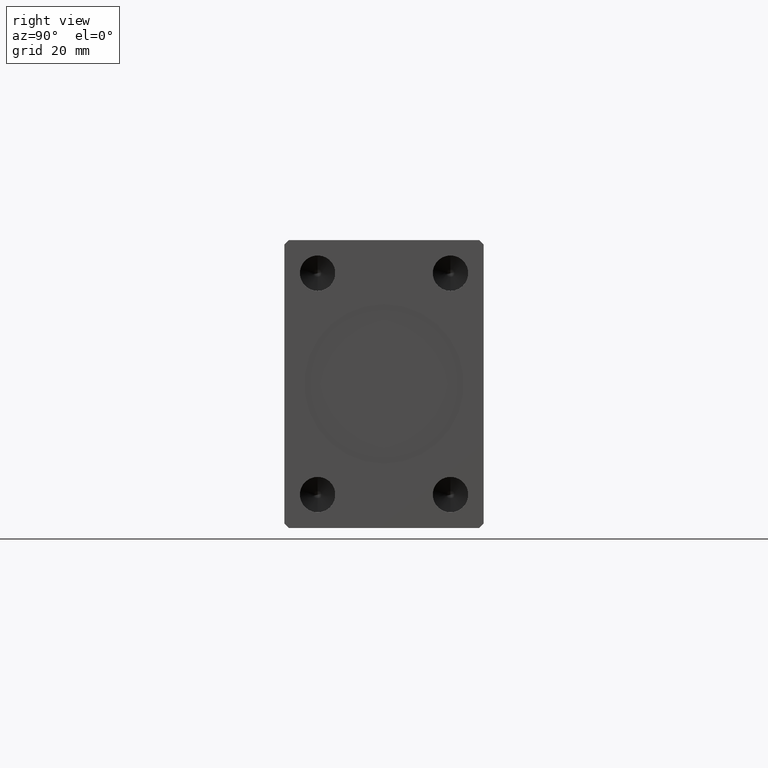
[diagram: clean part render]
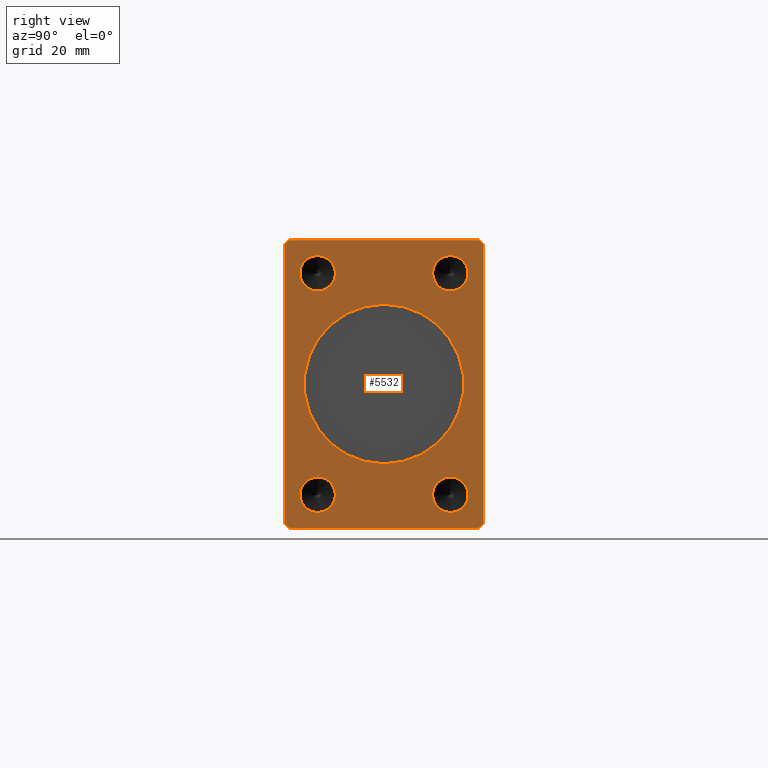
[diagram: same view with one face highlighted and labeled with its STEP entity id]
A machine part, right view. The second image highlights one B-rep face of the part: STEP entity #5532.
In plain terms, the highlighted planar face has unit normal (1, 0, 0).
Its self-contained STEP definition (entity closure, byte-faithful):
#200 = CARTESIAN_POINT ( 'NONE',  ( 138.0000000000000000, -14.99999999999999645, -24.99999999999999645 ) ) ;
#1016 = ORIENTED_EDGE ( 'NONE', *, *, #33784, .F. ) ;
#1176 = CIRCLE ( 'NONE', #10402, 4.000000000000000000 ) ;
#1280 = DIRECTION ( 'NONE',  ( 0.000000000000000000, 0.000000000000000000, -1.000000000000000000 ) ) ;
#1363 = VECTOR ( 'NONE', #7254, 1000.000000000000000 ) ;
#1558 = VERTEX_POINT ( 'NONE', #28728 ) ;
#2115 = ORIENTED_EDGE ( 'NONE', *, *, #31484, .F. ) ;
#2543 = FACE_BOUND ( 'NONE', #7049, .T. ) ;
#2833 = VERTEX_POINT ( 'NONE', #13356 ) ;
#2876 = AXIS2_PLACEMENT_3D ( 'NONE', #3764, #24056, #33662 ) ;
#2991 = AXIS2_PLACEMENT_3D ( 'NONE', #21620, #35234, #4666 ) ;
#3762 = LINE ( 'NONE', #36683, #5003 ) ;
#3764 = CARTESIAN_POINT ( 'NONE',  ( 138.0000000000000000, 15.00000000000000355, 25.00000000000000000 ) ) ;
#4071 = CARTESIAN_POINT ( 'NONE',  ( 138.0000000000000000, -14.99999999999999645, -20.99999999999999645 ) ) ;
#4209 = LINE ( 'NONE', #30535, #35631 ) ;
#4666 = DIRECTION ( 'NONE',  ( 0.000000000000000000, 0.000000000000000000, -1.000000000000000000 ) ) ;
#4786 = VERTEX_POINT ( 'NONE', #39221 ) ;
#4813 = LINE ( 'NONE', #8376, #22784 ) ;
#5003 = VECTOR ( 'NONE', #38760, 1000.000000000000114 ) ;
#5037 = DIRECTION ( 'NONE',  ( 0.000000000000000000, 1.000000000000000000, 1.613696256722610912E-16 ) ) ;
#5532 = ADVANCED_FACE ( 'NONE', ( #33097, #26201, #39796, #2543, #16145, #29760 ), #43367, .T. ) ;
#5717 = AXIS2_PLACEMENT_3D ( 'NONE', #12806, #40230, #23061 ) ;
#5733 = LINE ( 'NONE', #19341, #34863 ) ;
#5896 = CARTESIAN_POINT ( 'NONE',  ( 138.0000000000000000, -21.50000000000001421, 32.50000000000000000 ) ) ;
#6012 = ORIENTED_EDGE ( 'NONE', *, *, #26882, .T. ) ;
#6789 = EDGE_CURVE ( 'NONE', #31135, #37989, #39808, .T. ) ;
#6796 = EDGE_CURVE ( 'NONE', #17600, #40796, #22116, .T. ) ;
#7049 = EDGE_LOOP ( 'NONE', ( #7270, #8246 ) ) ;
#7254 = DIRECTION ( 'NONE',  ( 0.000000000000000000, 5.507058653894625853E-17, -1.000000000000000000 ) ) ;
#7270 = ORIENTED_EDGE ( 'NONE', *, *, #42065, .F. ) ;
#7840 = CARTESIAN_POINT ( 'NONE',  ( 138.0000000000000000, -21.50000000000001421, 32.50000000000000000 ) ) ;
#7913 = LINE ( 'NONE', #34922, #1363 ) ;
#8246 = ORIENTED_EDGE ( 'NONE', *, *, #29807, .F. ) ;
#8331 = EDGE_LOOP ( 'NONE', ( #25508, #30068 ) ) ;
#8376 = CARTESIAN_POINT ( 'NONE',  ( 138.0000000000000000, -21.50000000000001776, -32.50000000000000711 ) ) ;
#8964 = EDGE_CURVE ( 'NONE', #1558, #10633, #5733, .T. ) ;
#9067 = ORIENTED_EDGE ( 'NONE', *, *, #42921, .T. ) ;
#9712 = DIRECTION ( 'NONE',  ( 0.000000000000000000, 0.7071067811865451302, -0.7071067811865500152 ) ) ;
#9750 = EDGE_CURVE ( 'NONE', #10633, #32668, #4209, .T. ) ;
#10308 = DIRECTION ( 'NONE',  ( 1.000000000000000000, -0.000000000000000000, -0.000000000000000000 ) ) ;
#10402 = AXIS2_PLACEMENT_3D ( 'NONE', #18825, #35580, #42471 ) ;
#10427 = ORIENTED_EDGE ( 'NONE', *, *, #9750, .T. ) ;
#10454 = DIRECTION ( 'NONE',  ( 0.000000000000000000, 0.000000000000000000, -1.000000000000000000 ) ) ;
#10484 = CARTESIAN_POINT ( 'NONE',  ( 138.0000000000000000, 15.00000000000000355, 21.00000000000000000 ) ) ;
#10633 = VERTEX_POINT ( 'NONE', #15838 ) ;
#11469 = ORIENTED_EDGE ( 'NONE', *, *, #40822, .T. ) ;
#11563 = DIRECTION ( 'NONE',  ( 1.000000000000000000, -0.000000000000000000, -0.000000000000000000 ) ) ;
#11815 = VERTEX_POINT ( 'NONE', #29621 ) ;
#12130 = CIRCLE ( 'NONE', #24958, 4.000000000000000000 ) ;
#12214 = CARTESIAN_POINT ( 'NONE',  ( 138.0000000000000000, 15.00000000000000355, -28.99999999999999289 ) ) ;
#12472 = EDGE_CURVE ( 'NONE', #11815, #28555, #37891, .T. ) ;
#12806 = CARTESIAN_POINT ( 'NONE',  ( 138.0000000000000000, 0.000000000000000000, 0.000000000000000000 ) ) ;
#13068 = LINE ( 'NONE', #40273, #25692 ) ;
#13125 = CARTESIAN_POINT ( 'NONE',  ( 138.0000000000000000, 0.000000000000000000, 0.000000000000000000 ) ) ;
#13356 = CARTESIAN_POINT ( 'NONE',  ( 138.0000000000000000, -21.50000000000001776, -32.50000000000000711 ) ) ;
#13438 = CARTESIAN_POINT ( 'NONE',  ( 138.0000000000000000, 15.00000000000000355, 29.00000000000000000 ) ) ;
#13668 = DIRECTION ( 'NONE',  ( 0.000000000000000000, 0.000000000000000000, -1.000000000000000000 ) ) ;
#13722 = EDGE_LOOP ( 'NONE', ( #2115, #39688 ) ) ;
#13995 = ORIENTED_EDGE ( 'NONE', *, *, #41296, .F. ) ;
#14219 = VERTEX_POINT ( 'NONE', #12214 ) ;
#14871 = EDGE_CURVE ( 'NONE', #30458, #28729, #29632, .T. ) ;
#15479 = AXIS2_PLACEMENT_3D ( 'NONE', #26172, #36213, #43337 ) ;
#15639 = CARTESIAN_POINT ( 'NONE',  ( 138.0000000000000000, -14.99999999999999645, 24.99999999999999645 ) ) ;
#15653 = AXIS2_PLACEMENT_3D ( 'NONE', #42133, #11563, #25169 ) ;
#15838 = CARTESIAN_POINT ( 'NONE',  ( 138.0000000000000000, 22.49999999999999645, -31.50000000000000000 ) ) ;
#15946 = CARTESIAN_POINT ( 'NONE',  ( 138.0000000000000000, -22.50000000000001776, 31.50000000000000000 ) ) ;
#16145 = FACE_BOUND ( 'NONE', #8331, .T. ) ;
#17537 = AXIS2_PLACEMENT_3D ( 'NONE', #15639, #26345, #29264 ) ;
#17600 = VERTEX_POINT ( 'NONE', #4071 ) ;
#18522 = CIRCLE ( 'NONE', #15653, 4.000000000000000000 ) ;
#18646 = CARTESIAN_POINT ( 'NONE',  ( 138.0000000000000000, -14.99999999999999645, -28.99999999999999645 ) ) ;
#18825 = CARTESIAN_POINT ( 'NONE',  ( 138.0000000000000000, -14.99999999999999645, -24.99999999999999645 ) ) ;
#19107 = EDGE_LOOP ( 'NONE', ( #23154, #1016 ) ) ;
#19111 = DIRECTION ( 'NONE',  ( 0.000000000000000000, 0.7071067811865474617, 0.7071067811865474617 ) ) ;
#19341 = CARTESIAN_POINT ( 'NONE',  ( 138.0000000000000000, 21.49999999999999645, -32.50000000000000000 ) ) ;
#19387 = DIRECTION ( 'NONE',  ( 0.000000000000000000, 0.000000000000000000, -1.000000000000000000 ) ) ;
#19825 = EDGE_CURVE ( 'NONE', #32668, #27137, #3762, .T. ) ;
#20388 = CARTESIAN_POINT ( 'NONE',  ( 138.0000000000000000, 2.204364238465235428E-15, 18.00000000000000000 ) ) ;
#21033 = CARTESIAN_POINT ( 'NONE',  ( 138.0000000000000000, 21.49999999999999645, 32.50000000000000000 ) ) ;
#21579 = CARTESIAN_POINT ( 'NONE',  ( 138.0000000000000000, -14.99999999999999645, 24.99999999999999645 ) ) ;
#21620 = CARTESIAN_POINT ( 'NONE',  ( 138.0000000000000000, 0.000000000000000000, 0.000000000000000000 ) ) ;
#22116 = CIRCLE ( 'NONE', #34230, 4.000000000000000000 ) ;
#22308 = EDGE_CURVE ( 'NONE', #24650, #40945, #30422, .T. ) ;
#22784 = VECTOR ( 'NONE', #5037, 1000.000000000000000 ) ;
#23061 = DIRECTION ( 'NONE',  ( 0.000000000000000000, 0.000000000000000000, -1.000000000000000000 ) ) ;
#23105 = VECTOR ( 'NONE', #33770, 1000.000000000000114 ) ;
#23154 = ORIENTED_EDGE ( 'NONE', *, *, #12472, .F. ) ;
#23294 = AXIS2_PLACEMENT_3D ( 'NONE', #21579, #35196, #1280 ) ;
#23398 = DIRECTION ( 'NONE',  ( 1.000000000000000000, -0.000000000000000000, -0.000000000000000000 ) ) ;
#23718 = ORIENTED_EDGE ( 'NONE', *, *, #8964, .T. ) ;
#24056 = DIRECTION ( 'NONE',  ( 1.000000000000000000, -0.000000000000000000, -0.000000000000000000 ) ) ;
#24195 = EDGE_LOOP ( 'NONE', ( #37161, #6012, #29098, #43413, #9067, #11469, #23718, #10427 ) ) ;
#24650 = VERTEX_POINT ( 'NONE', #7840 ) ;
#24846 = CARTESIAN_POINT ( 'NONE',  ( 138.0000000000000000, -14.99999999999999645, 20.99999999999999645 ) ) ;
#24958 = AXIS2_PLACEMENT_3D ( 'NONE', #41313, #10308, #13668 ) ;
#25169 = DIRECTION ( 'NONE',  ( 0.000000000000000000, 0.000000000000000000, -1.000000000000000000 ) ) ;
#25508 = ORIENTED_EDGE ( 'NONE', *, *, #33215, .F. ) ;
#25692 = VECTOR ( 'NONE', #9712, 1000.000000000000114 ) ;
#26172 = CARTESIAN_POINT ( 'NONE',  ( 138.0000000000000000, 15.00000000000000355, -24.99999999999999289 ) ) ;
#26201 = FACE_BOUND ( 'NONE', #36067, .T. ) ;
#26345 = DIRECTION ( 'NONE',  ( 1.000000000000000000, -0.000000000000000000, -0.000000000000000000 ) ) ;
#26567 = CARTESIAN_POINT ( 'NONE',  ( 138.0000000000000000, 22.49999999999999645, 31.50000000000000000 ) ) ;
#26882 = EDGE_CURVE ( 'NONE', #27137, #24650, #43589, .T. ) ;
#27137 = VERTEX_POINT ( 'NONE', #21033 ) ;
#27579 = CIRCLE ( 'NONE', #28999, 18.00000000000000000 ) ;
#28311 = CIRCLE ( 'NONE', #15479, 4.000000000000000000 ) ;
#28555 = VERTEX_POINT ( 'NONE', #20388 ) ;
#28728 = CARTESIAN_POINT ( 'NONE',  ( 138.0000000000000000, 21.49999999999999645, -32.50000000000000000 ) ) ;
#28729 = VERTEX_POINT ( 'NONE', #24846 ) ;
#28999 = AXIS2_PLACEMENT_3D ( 'NONE', #13125, #33198, #19387 ) ;
#29098 = ORIENTED_EDGE ( 'NONE', *, *, #22308, .T. ) ;
#29264 = DIRECTION ( 'NONE',  ( 0.000000000000000000, 0.000000000000000000, -1.000000000000000000 ) ) ;
#29621 = CARTESIAN_POINT ( 'NONE',  ( 138.0000000000000000, 0.000000000000000000, -18.00000000000000000 ) ) ;
#29632 = CIRCLE ( 'NONE', #17537, 4.000000000000000000 ) ;
#29760 = FACE_OUTER_BOUND ( 'NONE', #24195, .T. ) ;
#29807 = EDGE_CURVE ( 'NONE', #31361, #14219, #28311, .T. ) ;
#30068 = ORIENTED_EDGE ( 'NONE', *, *, #14871, .F. ) ;
#30422 = LINE ( 'NONE', #5896, #23105 ) ;
#30458 = VERTEX_POINT ( 'NONE', #41597 ) ;
#30535 = CARTESIAN_POINT ( 'NONE',  ( 138.0000000000000000, 22.49999999999999645, -31.50000000000000000 ) ) ;
#31077 = VECTOR ( 'NONE', #40011, 1000.000000000000000 ) ;
#31135 = VERTEX_POINT ( 'NONE', #10484 ) ;
#31361 = VERTEX_POINT ( 'NONE', #39664 ) ;
#31419 = DIRECTION ( 'NONE',  ( 0.000000000000000000, 0.000000000000000000, 1.000000000000000000 ) ) ;
#31484 = EDGE_CURVE ( 'NONE', #40796, #17600, #1176, .T. ) ;
#31865 = CIRCLE ( 'NONE', #23294, 4.000000000000000000 ) ;
#32668 = VERTEX_POINT ( 'NONE', #26567 ) ;
#33092 = CARTESIAN_POINT ( 'NONE',  ( 138.0000000000000000, 21.49999999999999645, 32.50000000000000000 ) ) ;
#33097 = FACE_BOUND ( 'NONE', #19107, .T. ) ;
#33198 = DIRECTION ( 'NONE',  ( 1.000000000000000000, 0.000000000000000000, 0.000000000000000000 ) ) ;
#33215 = EDGE_CURVE ( 'NONE', #28729, #30458, #31865, .T. ) ;
#33662 = DIRECTION ( 'NONE',  ( 0.000000000000000000, 0.000000000000000000, -1.000000000000000000 ) ) ;
#33770 = DIRECTION ( 'NONE',  ( 0.000000000000000000, -0.7071067811865474617, -0.7071067811865474617 ) ) ;
#33784 = EDGE_CURVE ( 'NONE', #28555, #11815, #27579, .T. ) ;
#34230 = AXIS2_PLACEMENT_3D ( 'NONE', #200, #23398, #10454 ) ;
#34581 = ORIENTED_EDGE ( 'NONE', *, *, #6789, .F. ) ;
#34863 = VECTOR ( 'NONE', #19111, 1000.000000000000114 ) ;
#34922 = CARTESIAN_POINT ( 'NONE',  ( 138.0000000000000000, -22.50000000000001776, 31.50000000000000000 ) ) ;
#35196 = DIRECTION ( 'NONE',  ( 1.000000000000000000, -0.000000000000000000, -0.000000000000000000 ) ) ;
#35234 = DIRECTION ( 'NONE',  ( 1.000000000000000000, 0.000000000000000000, 0.000000000000000000 ) ) ;
#35580 = DIRECTION ( 'NONE',  ( 1.000000000000000000, -0.000000000000000000, -0.000000000000000000 ) ) ;
#35631 = VECTOR ( 'NONE', #31419, 1000.000000000000000 ) ;
#36067 = EDGE_LOOP ( 'NONE', ( #34581, #13995 ) ) ;
#36213 = DIRECTION ( 'NONE',  ( 1.000000000000000000, -0.000000000000000000, -0.000000000000000000 ) ) ;
#36683 = CARTESIAN_POINT ( 'NONE',  ( 138.0000000000000000, 22.49999999999999645, 31.50000000000000000 ) ) ;
#37161 = ORIENTED_EDGE ( 'NONE', *, *, #19825, .T. ) ;
#37891 = CIRCLE ( 'NONE', #2991, 18.00000000000000000 ) ;
#37989 = VERTEX_POINT ( 'NONE', #13438 ) ;
#38613 = EDGE_CURVE ( 'NONE', #40945, #4786, #7913, .T. ) ;
#38760 = DIRECTION ( 'NONE',  ( 0.000000000000000000, -0.7071067811865474617, 0.7071067811865474617 ) ) ;
#39221 = CARTESIAN_POINT ( 'NONE',  ( 138.0000000000000000, -22.50000000000001421, -31.50000000000000711 ) ) ;
#39664 = CARTESIAN_POINT ( 'NONE',  ( 138.0000000000000000, 15.00000000000000355, -20.99999999999999289 ) ) ;
#39688 = ORIENTED_EDGE ( 'NONE', *, *, #6796, .F. ) ;
#39796 = FACE_BOUND ( 'NONE', #13722, .T. ) ;
#39808 = CIRCLE ( 'NONE', #2876, 4.000000000000000000 ) ;
#40011 = DIRECTION ( 'NONE',  ( 0.000000000000000000, -1.000000000000000000, 0.000000000000000000 ) ) ;
#40230 = DIRECTION ( 'NONE',  ( 1.000000000000000000, 0.000000000000000000, 0.000000000000000000 ) ) ;
#40273 = CARTESIAN_POINT ( 'NONE',  ( 138.0000000000000000, -22.50000000000001421, -31.50000000000000711 ) ) ;
#40796 = VERTEX_POINT ( 'NONE', #18646 ) ;
#40822 = EDGE_CURVE ( 'NONE', #2833, #1558, #4813, .T. ) ;
#40945 = VERTEX_POINT ( 'NONE', #15946 ) ;
#41296 = EDGE_CURVE ( 'NONE', #37989, #31135, #18522, .T. ) ;
#41313 = CARTESIAN_POINT ( 'NONE',  ( 138.0000000000000000, 15.00000000000000355, -24.99999999999999289 ) ) ;
#41597 = CARTESIAN_POINT ( 'NONE',  ( 138.0000000000000000, -14.99999999999999645, 28.99999999999999645 ) ) ;
#42065 = EDGE_CURVE ( 'NONE', #14219, #31361, #12130, .T. ) ;
#42133 = CARTESIAN_POINT ( 'NONE',  ( 138.0000000000000000, 15.00000000000000355, 25.00000000000000000 ) ) ;
#42471 = DIRECTION ( 'NONE',  ( 0.000000000000000000, 0.000000000000000000, -1.000000000000000000 ) ) ;
#42921 = EDGE_CURVE ( 'NONE', #4786, #2833, #13068, .T. ) ;
#43337 = DIRECTION ( 'NONE',  ( 0.000000000000000000, 0.000000000000000000, -1.000000000000000000 ) ) ;
#43367 = PLANE ( 'NONE',  #5717 ) ;
#43413 = ORIENTED_EDGE ( 'NONE', *, *, #38613, .T. ) ;
#43589 = LINE ( 'NONE', #33092, #31077 ) ;